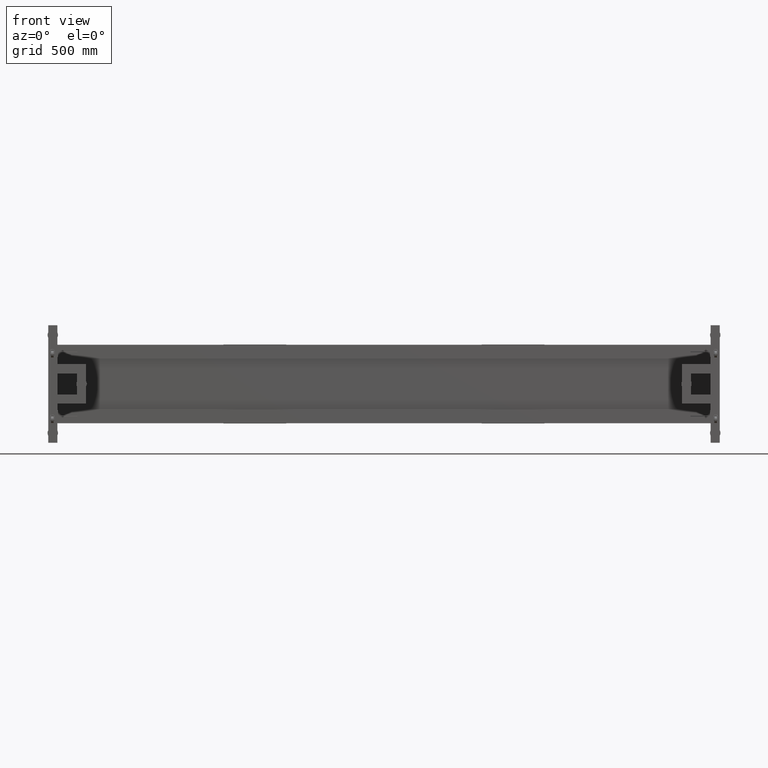
[diagram: clean part render]
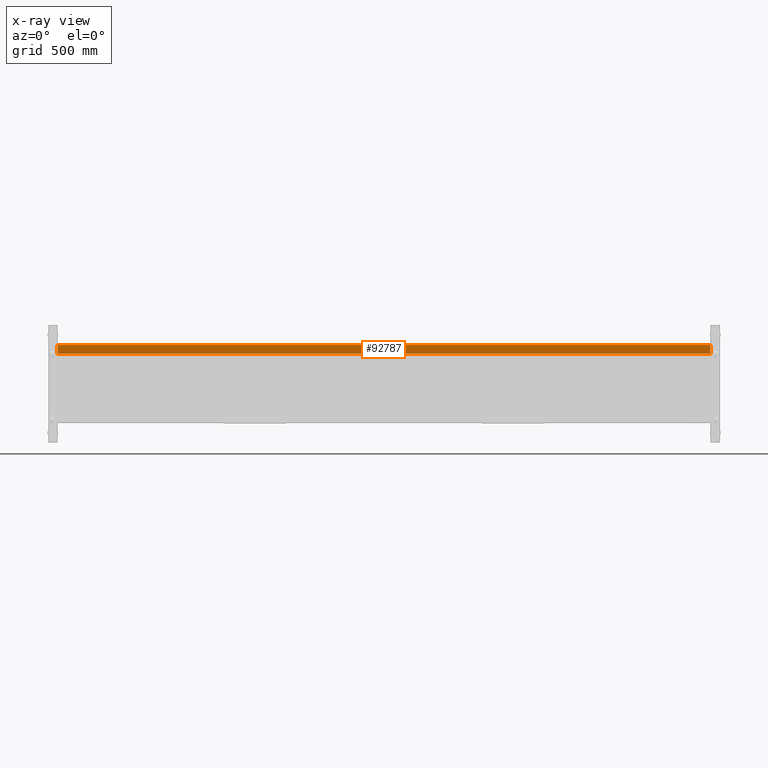
[diagram: x-ray — body ghosted, one internal face saturated and labeled with its STEP entity id]
A machine part, front view, then the same camera in x-ray: the body is ghosted and one INTERNAL B-rep face — a face not visible from any outside direction — is saturated and labeled: STEP entity #92787.
In plain terms, the highlighted planar face has unit normal (0, -1, -0).
Its self-contained STEP definition (entity closure, byte-faithful):
#5394 = DIRECTION ( 'NONE',  ( 8.774920553144622377E-31, -2.999999999999999839E-15, 1.000000000000000000 ) ) ;
#14394 = VECTOR ( 'NONE', #86071, 1000.000000000000000 ) ;
#16987 = VECTOR ( 'NONE', #47447, 1000.000000000000000 ) ;
#20530 = LINE ( 'NONE', #57649, #103864 ) ;
#21767 = VERTEX_POINT ( 'NONE', #52092 ) ;
#24695 = VERTEX_POINT ( 'NONE', #81040 ) ;
#27947 = LINE ( 'NONE', #111955, #16987 ) ;
#29852 = EDGE_LOOP ( 'NONE', ( #92898, #53396, #71238, #106712 ) ) ;
#30890 = DIRECTION ( 'NONE',  ( 0.000000000000000000, -2.999999999999999839E-15, 1.000000000000000000 ) ) ;
#32052 = CARTESIAN_POINT ( 'NONE',  ( 3729.827512562816082, 554.4410804020114938, 297.5000000000001137 ) ) ;
#32628 = EDGE_CURVE ( 'NONE', #60818, #39995, #87277, .T. ) ;
#39995 = VERTEX_POINT ( 'NONE', #32052 ) ;
#41860 = FACE_OUTER_BOUND ( 'NONE', #29852, .T. ) ;
#47447 = DIRECTION ( 'NONE',  ( 1.000000000000000000, 4.543257172554223644E-16, 0.000000000000000000 ) ) ;
#49684 = EDGE_CURVE ( 'NONE', #21767, #60818, #20530, .T. ) ;
#52092 = CARTESIAN_POINT ( 'NONE',  ( -1266.172487437185964, 554.4410804020110390, 232.5000000000000853 ) ) ;
#52159 = EDGE_CURVE ( 'NONE', #21767, #24695, #27947, .T. ) ;
#53396 = ORIENTED_EDGE ( 'NONE', *, *, #49684, .F. ) ;
#57649 = CARTESIAN_POINT ( 'NONE',  ( -1266.172487437185964, 554.4410804020110390, 232.5000000000000853 ) ) ;
#60818 = VERTEX_POINT ( 'NONE', #69044 ) ;
#69044 = CARTESIAN_POINT ( 'NONE',  ( -1266.172487437185964, 554.4410804020108117, 297.5000000000001137 ) ) ;
#69199 = PLANE ( 'NONE',  #93509 ) ;
#69947 = EDGE_CURVE ( 'NONE', #24695, #39995, #77789, .T. ) ;
#71238 = ORIENTED_EDGE ( 'NONE', *, *, #52159, .T. ) ;
#77789 = LINE ( 'NONE', #97879, #101210 ) ;
#81040 = CARTESIAN_POINT ( 'NONE',  ( 3729.827512562816082, 554.4410804020117212, 232.5000000000000853 ) ) ;
#86071 = DIRECTION ( 'NONE',  ( 1.000000000000000000, 4.543257172554223644E-16, 0.000000000000000000 ) ) ;
#87277 = LINE ( 'NONE', #104999, #14394 ) ;
#89865 = DIRECTION ( 'NONE',  ( 1.362977151766267009E-30, -2.999999999999999839E-15, 1.000000000000000000 ) ) ;
#92265 = DIRECTION ( 'NONE',  ( 4.543257172554223644E-16, -1.000000000000000000, -2.999999999999999839E-15 ) ) ;
#92787 = ADVANCED_FACE ( 'NONE', ( #41860 ), #69199, .T. ) ;
#92898 = ORIENTED_EDGE ( 'NONE', *, *, #32628, .F. ) ;
#93509 = AXIS2_PLACEMENT_3D ( 'NONE', #119683, #92265, #89865 ) ;
#97879 = CARTESIAN_POINT ( 'NONE',  ( 3729.827512562816082, 554.4410804020117212, 232.5000000000000853 ) ) ;
#101210 = VECTOR ( 'NONE', #5394, 1000.000000000000000 ) ;
#103864 = VECTOR ( 'NONE', #30890, 1000.000000000000000 ) ;
#104999 = CARTESIAN_POINT ( 'NONE',  ( -566.1724874371851683, 554.4410804020108117, 297.5000000000001137 ) ) ;
#106712 = ORIENTED_EDGE ( 'NONE', *, *, #69947, .T. ) ;
#111955 = CARTESIAN_POINT ( 'NONE',  ( -566.1724874371851683, 554.4410804020110390, 232.5000000000000853 ) ) ;
#119683 = CARTESIAN_POINT ( 'NONE',  ( -566.1724874371851683, 554.4410804020110390, 232.5000000000000853 ) ) ;